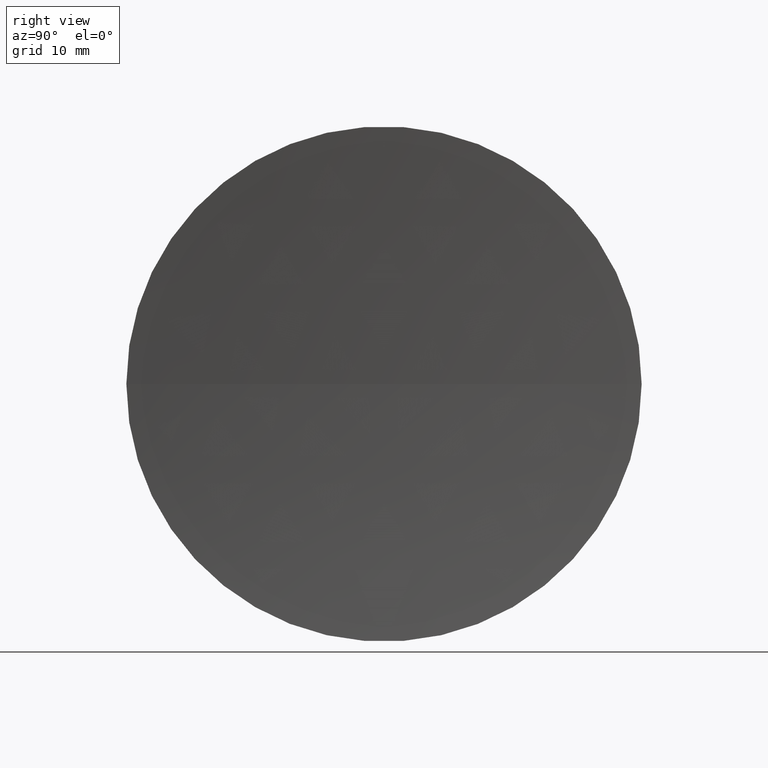
[diagram: clean part render]
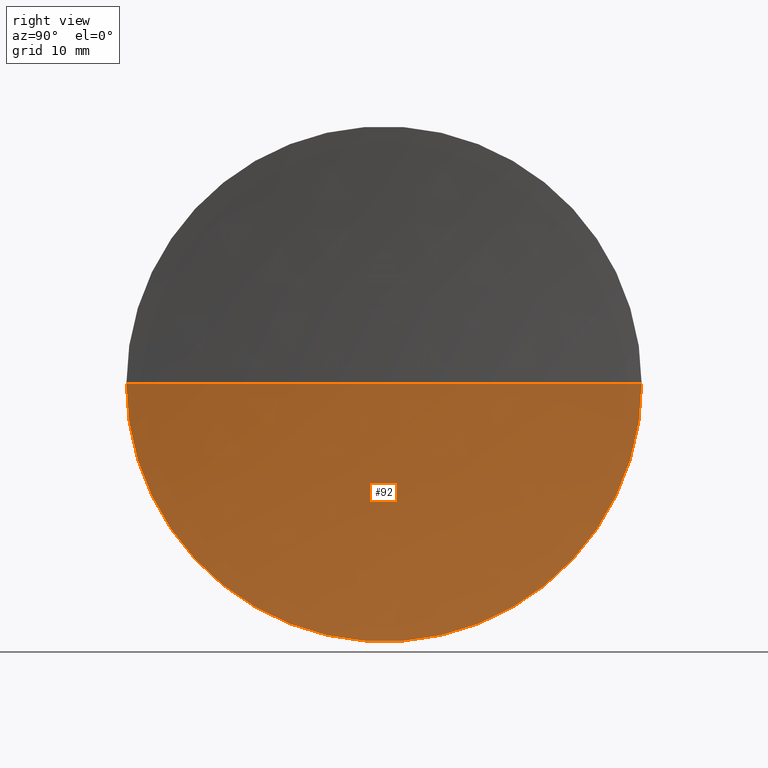
[diagram: same view with one face highlighted and labeled with its STEP entity id]
A machine part, right view. The second image highlights one B-rep face of the part: STEP entity #92.
In plain terms, the highlighted spherical surface has radius 236 mm.
Its self-contained STEP definition (entity closure, byte-faithful):
#3 = AXIS2_PLACEMENT_3D ( 'NONE', #127, #38, #144 ) ;
#6 = AXIS2_PLACEMENT_3D ( 'NONE', #72, #191, #101 ) ;
#12 = ORIENTED_EDGE ( 'NONE', *, *, #31, .F. ) ;
#14 = CARTESIAN_POINT ( 'NONE',  ( 487.0821311214901900, 130.4336809418806000, 0.0000000000000000000 ) ) ;
#15 = CARTESIAN_POINT ( 'NONE',  ( 251.0821311214901400, 130.4336809418804500, 0.0000000000000000000 ) ) ;
#19 = VERTEX_POINT ( 'NONE', #141 ) ;
#27 = DIRECTION ( 'NONE',  ( 0.0000000000000000000, -1.000000000000000000, 0.0000000000000000000 ) ) ;
#28 = CARTESIAN_POINT ( 'NONE',  ( 252.4100194422366900, 130.4336809418806800, 0.0000000000000000000 ) ) ;
#31 = EDGE_CURVE ( 'NONE', #168, #135, #71, .T. ) ;
#38 = DIRECTION ( 'NONE',  ( 0.0000000000000000000, 0.0000000000000000000, -1.000000000000000000 ) ) ;
#40 = CARTESIAN_POINT ( 'NONE',  ( 252.4100194422367500, 105.4336809418806500, -3.061616997868356600E-015 ) ) ;
#44 = AXIS2_PLACEMENT_3D ( 'NONE', #14, #67, #146 ) ;
#58 = EDGE_CURVE ( 'NONE', #19, #135, #99, .T. ) ;
#67 = DIRECTION ( 'NONE',  ( -8.496118506040342700E-032, 1.224646799147353200E-016, -1.000000000000000000 ) ) ;
#70 = CIRCLE ( 'NONE', #80, 24.99999999999992500 ) ;
#71 = CIRCLE ( 'NONE', #44, 236.0000000000000600 ) ;
#72 = CARTESIAN_POINT ( 'NONE',  ( 487.0821311214901900, 130.4336809418806000, 0.0000000000000000000 ) ) ;
#80 = AXIS2_PLACEMENT_3D ( 'NONE', #28, #163, #27 ) ;
#90 = EDGE_CURVE ( 'NONE', #19, #168, #70, .T. ) ;
#92 = ADVANCED_FACE ( 'NONE', ( #159 ), #131, .F. ) ;
#99 = CIRCLE ( 'NONE', #6, 236.0000000000000600 ) ;
#101 = DIRECTION ( 'NONE',  ( 1.000000000000000000, 0.0000000000000000000, 0.0000000000000000000 ) ) ;
#110 = ORIENTED_EDGE ( 'NONE', *, *, #90, .F. ) ;
#127 = CARTESIAN_POINT ( 'NONE',  ( 487.0821311214901900, 130.4336809418806000, 0.0000000000000000000 ) ) ;
#131 = SPHERICAL_SURFACE ( 'NONE', #3, 236.0000000000000600 ) ;
#135 = VERTEX_POINT ( 'NONE', #15 ) ;
#141 = CARTESIAN_POINT ( 'NONE',  ( 252.4100194422366900, 155.4336809418804500, 0.0000000000000000000 ) ) ;
#144 = DIRECTION ( 'NONE',  ( -7.056502275159891200E-016, 1.000000000000000000, 0.0000000000000000000 ) ) ;
#146 = DIRECTION ( 'NONE',  ( 0.0000000000000000000, 1.000000000000000000, 1.224646799147353000E-016 ) ) ;
#159 = FACE_OUTER_BOUND ( 'NONE', #172, .T. ) ;
#163 = DIRECTION ( 'NONE',  ( -1.000000000000000000, -6.937607244762875000E-016, -0.0000000000000000000 ) ) ;
#168 = VERTEX_POINT ( 'NONE', #40 ) ;
#172 = EDGE_LOOP ( 'NONE', ( #12, #110, #189 ) ) ;
#189 = ORIENTED_EDGE ( 'NONE', *, *, #58, .T. ) ;
#191 = DIRECTION ( 'NONE',  ( 0.0000000000000000000, -0.0000000000000000000, 1.000000000000000000 ) ) ;